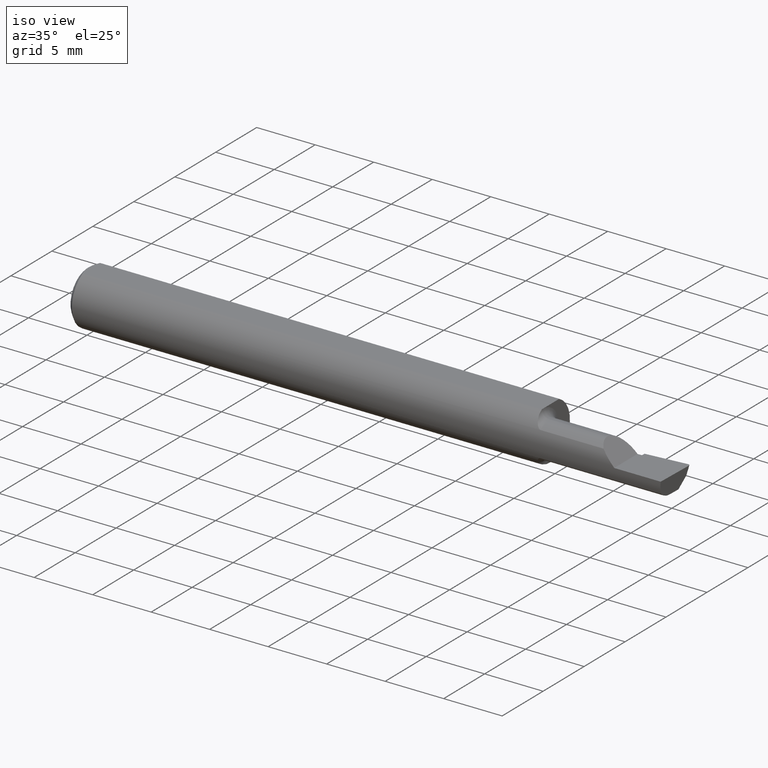
[diagram: clean part render]
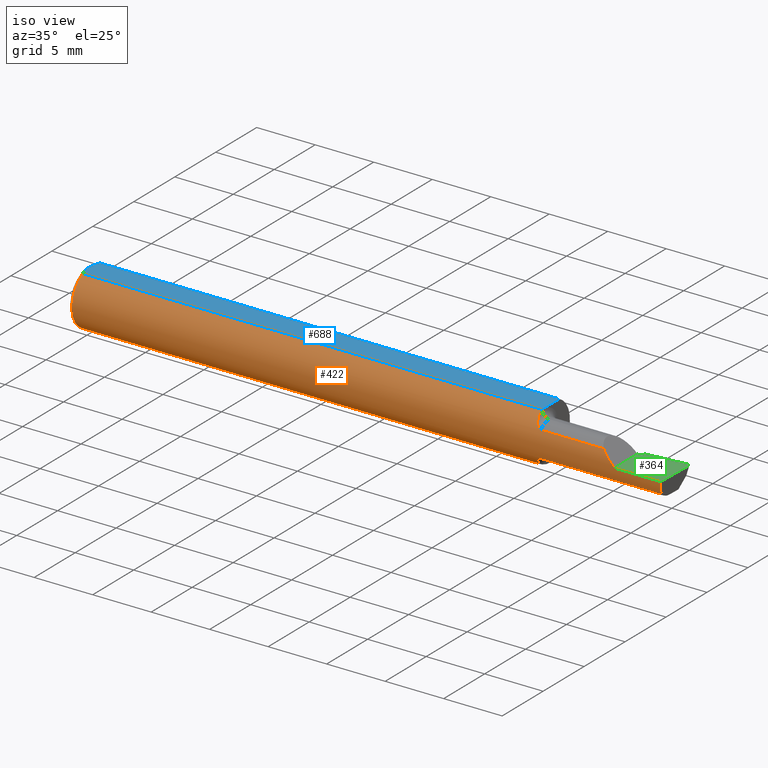
[diagram: same view with three faces highlighted in distinct colors, each labeled with its STEP entity id]
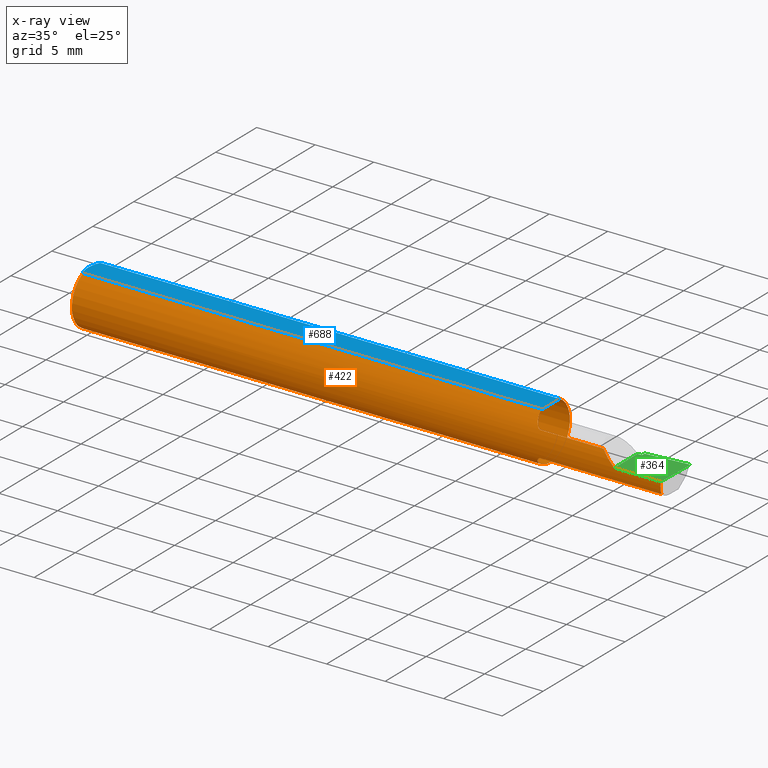
[diagram: x-ray of the same camera — body ghosted, the three highlighted faces saturated]
A machine part, iso view with three faces highlighted in distinct colors.
The next image is the same camera in x-ray (body ghosted, the three faces saturated) — at least one of them is partly hidden behind the body in this view.
Their STEP definitions:

[orange] entity #422 — the highlighted cylindrical surface (edge-blend (fillet) strip) has radius 2.3774 mm, axis along (-1, -0, -0).
#2 = VERTEX_POINT ( 'NONE', #658 ) ;
#3 = CARTESIAN_POINT ( 'NONE',  ( 0.01499999999999999598, 0.0000000000000000000, 0.0000000000000000000 ) ) ;
#5 = DIRECTION ( 'NONE',  ( 0.0000000000000000000, 0.0000000000000000000, 1.000000000000000000 ) ) ;
#15 = VERTEX_POINT ( 'NONE', #202 ) ;
#17 = AXIS2_PLACEMENT_3D ( 'NONE', #3, #293, #723 ) ;
#19 = B_SPLINE_CURVE_WITH_KNOTS ( 'NONE', 3,
 ( #73, #77, #51, #46, #40, #38, #36, #34, #28, #25, #22, #20 ),
 .UNSPECIFIED., .F., .F.,
 ( 4, 2, 2, 2, 2, 4 ),
 ( 4.385794166512837915E-07, 0.0004249653867803446445, 0.0008494921941440380627, 0.001274019001507731372, 0.001486282405189578298, 0.001698545808871425441 ),
 .UNSPECIFIED. ) ;
#20 = CARTESIAN_POINT ( 'NONE',  ( 1.584999999999999964, -0.08307469879518060429, 0.04312255117789304260 ) ) ;
#22 = CARTESIAN_POINT ( 'NONE',  ( 1.582123707331538176, -0.08307469879541819202, 0.04312255117743575561 ) ) ;
#25 = CARTESIAN_POINT ( 'NONE',  ( 1.579521451227007711, -0.08233651528522395457, 0.04455777109850305590 ) ) ;
#28 = CARTESIAN_POINT ( 'NONE',  ( 1.575413575230741436, -0.08042664989321213209, 0.04791921015141203249 ) ) ;
#34 = CARTESIAN_POINT ( 'NONE',  ( 1.573723886093656876, -0.07921817987507920322, 0.04991299092652130842 ) ) ;
#36 = CARTESIAN_POINT ( 'NONE',  ( 1.569277238843510558, -0.07518688180261749732, 0.05595855205958088358 ) ) ;
#38 = CARTESIAN_POINT ( 'NONE',  ( 1.567169981117899846, -0.07201923175886887352, 0.06001882546782344452 ) ) ;
#39 = CARTESIAN_POINT ( 'NONE',  ( 0.0000000000000000000, -0.04209513035969835587, 0.08360000000000000764 ) ) ;
#40 = CARTESIAN_POINT ( 'NONE',  ( 1.563721006865827379, -0.06478644025684783536, 0.06776242552123265539 ) ) ;
#41 = FACE_OUTER_BOUND ( 'NONE', #388, .T. ) ;
#42 = DIRECTION ( 'NONE',  ( -1.000000000000000000, -0.0000000000000000000, -0.0000000000000000000 ) ) ;
#46 = CARTESIAN_POINT ( 'NONE',  ( 1.562429122971264350, -0.06066239981255451552, 0.07149394324265900824 ) ) ;
#48 = CARTESIAN_POINT ( 'NONE',  ( 1.559999999999999831, -0.04014498638740777309, -0.08455714216888016166 ) ) ;
#49 = CARTESIAN_POINT ( 'NONE',  ( 0.01499999999999999598, 0.0000000000000000000, 0.0000000000000000000 ) ) ;
#51 = CARTESIAN_POINT ( 'NONE',  ( 1.560661035553191134, -0.05185656404701179806, 0.07811662714583196554 ) ) ;
#58 = LINE ( 'NONE', #592, #103 ) ;
#61 = DIRECTION ( 'NONE',  ( 1.000000000000000000, 0.0000000000000000000, 0.0000000000000000000 ) ) ;
#63 = CARTESIAN_POINT ( 'NONE',  ( 1.559999999999999831, 0.0000000000000000000, 0.0000000000000000000 ) ) ;
#65 = LINE ( 'NONE', #309, #630 ) ;
#73 = CARTESIAN_POINT ( 'NONE',  ( 1.560033712670300110, -0.04209513035969835587, 0.08360000000000000764 ) ) ;
#74 = CARTESIAN_POINT ( 'NONE',  ( 1.584999999999999964, -0.08307469879518090961, -0.04312255117789274422 ) ) ;
#77 = CARTESIAN_POINT ( 'NONE',  ( 1.560163936266268259, -0.04714148439307228045, 0.08105900800387488836 ) ) ;
#84 = DIRECTION ( 'NONE',  ( 1.000000000000000000, 0.0000000000000000000, 0.0000000000000000000 ) ) ;
#99 = DIRECTION ( 'NONE',  ( -1.000000000000000000, -0.0000000000000000000, -0.0000000000000000000 ) ) ;
#103 = VECTOR ( 'NONE', #84, 39.37007874015748143 ) ;
#106 = CARTESIAN_POINT ( 'NONE',  ( 1.560006719116742380, -0.04082489400077269487, -0.08423096411932438909 ) ) ;
#110 = CARTESIAN_POINT ( 'NONE',  ( 1.575354605856553514, -0.08039319987159068703, -0.04797642756495489741 ) ) ;
#112 = CARTESIAN_POINT ( 'NONE',  ( 1.996386342823452287, -0.09360000000000009979, -6.634435288474569554E-17 ) ) ;
#123 = ORIENTED_EDGE ( 'NONE', *, *, #549, .T. ) ;
#126 = CIRCLE ( 'NONE', #17, 0.09360000000000001652 ) ;
#128 = CARTESIAN_POINT ( 'NONE',  ( 1.991365359011874947, -0.08307469879518075695, -0.04312255117789293157 ) ) ;
#134 = CARTESIAN_POINT ( 'NONE',  ( 0.01499999999999999598, 0.04209513035969837669, 0.08360000000000000764 ) ) ;
#137 = CARTESIAN_POINT ( 'NONE',  ( 0.0000000000000000000, 0.0000000000000000000, 0.0000000000000000000 ) ) ;
#160 = CARTESIAN_POINT ( 'NONE',  ( 1.824917075065774830, -0.09360000000000001652, 0.01508292493422502302 ) ) ;
#162 = EDGE_CURVE ( 'NONE', #2, #594, #19, .T. ) ;
#164 = CARTESIAN_POINT ( 'NONE',  ( 1.996386342823452287, -0.09360000000000009979, -6.634435288474569554E-17 ) ) ;
#165 = CARTESIAN_POINT ( 'NONE',  ( 1.719999999999999973, -0.08307469879518075695, 0.04312255117789293157 ) ) ;
#167 = ORIENTED_EDGE ( 'NONE', *, *, #578, .F. ) ;
#170 = CARTESIAN_POINT ( 'NONE',  ( 1.569237437666585633, -0.07513599091569017618, -0.05602756047418831764 ) ) ;
#177 = DIRECTION ( 'NONE',  ( 0.0000000000000000000, 0.0000000000000000000, -1.000000000000000000 ) ) ;
#183 = CARTESIAN_POINT ( 'NONE',  ( 0.01499999999999999598, 0.0000000000000000000, -0.09360000000000001652 ) ) ;
#185 = VERTEX_POINT ( 'NONE', #134 ) ;
#188 = CARTESIAN_POINT ( 'NONE',  ( 1.840000000000000080, -0.09360000000000005815, 1.959434878635762025E-17 ) ) ;
#192 = CARTESIAN_POINT ( 'NONE',  ( 1.579498465877714031, -0.08233174416856396671, -0.04456779206614374517 ) ) ;
#202 = CARTESIAN_POINT ( 'NONE',  ( 1.559999999999999831, 0.04209513035969836975, 0.08360000000000000764 ) ) ;
#204 = CARTESIAN_POINT ( 'NONE',  ( 1.840000000000000080, -0.09360000000000005815, 1.959434878635762025E-17 ) ) ;
#205 = CARTESIAN_POINT ( 'NONE',  ( 1.560604804002112989, -0.05145819953596716956, -0.07838465384289880489 ) ) ;
#212 = CARTESIAN_POINT ( 'NONE',  ( 1.992827658777091893, -0.09002356847881787250, -0.02973569812382171815 ) ) ;
#216 = EDGE_CURVE ( 'NONE', #185, #15, #58, .T. ) ;
#217 = CARTESIAN_POINT ( 'NONE',  ( 0.01499999999999999944, -0.04209513035969835587, 0.08360000000000000764 ) ) ;
#219 = DIRECTION ( 'NONE',  ( -1.000000000000000000, -0.0000000000000000000, -0.0000000000000000000 ) ) ;
#221 = ORIENTED_EDGE ( 'NONE', *, *, #532, .F. ) ;
#229 =( BOUNDED_CURVE ( )  B_SPLINE_CURVE ( 3, ( #188, #160, #241, #244 ),
 .UNSPECIFIED., .F., .F. ) 
 B_SPLINE_CURVE_WITH_KNOTS ( ( 4, 4 ),
 ( 4.712388980384689674, 5.191185112936687496 ),
 .UNSPECIFIED. ) 
 CURVE ( )  GEOMETRIC_REPRESENTATION_ITEM ( )  RATIONAL_B_SPLINE_CURVE ( ( 1.000000000000000000, 0.9809872534005956712, 0.9809872534005956712, 1.000000000000000000 ) ) 
 REPRESENTATION_ITEM ( '' )  );
#238 = VECTOR ( 'NONE', #463, 39.37007874015748143 ) ;
#241 = CARTESIAN_POINT ( 'NONE',  ( 1.810264301876177928, -0.09002356847881788637, 0.02973569812382168345 ) ) ;
#242 = AXIS2_PLACEMENT_3D ( 'NONE', #49, #42, #5 ) ;
#243 = ORIENTED_EDGE ( 'NONE', *, *, #634, .T. ) ;
#244 = CARTESIAN_POINT ( 'NONE',  ( 1.796877448822106649, -0.08307469879518077083, 0.04312255117789291076 ) ) ;
#245 = VERTEX_POINT ( 'NONE', #112 ) ;
#257 = VERTEX_POINT ( 'NONE', #74 ) ;
#260 = VECTOR ( 'NONE', #276, 39.37007874015748143 ) ;
#262 = EDGE_CURVE ( 'NONE', #651, #448, #229, .T. ) ;
#272 =( BOUNDED_CURVE ( )  B_SPLINE_CURVE ( 3, ( #602, #212, #717, #164 ),
 .UNSPECIFIED., .F., .F. ) 
 B_SPLINE_CURVE_WITH_KNOTS ( ( 4, 4 ),
 ( 0.8819507499627812219, 1.360746882514778822 ),
 .UNSPECIFIED. ) 
 CURVE ( )  GEOMETRIC_REPRESENTATION_ITEM ( )  RATIONAL_B_SPLINE_CURVE ( ( 1.000000000000000000, 0.9809872534005956712, 0.9809872534005956712, 1.000000000000000000 ) ) 
 REPRESENTATION_ITEM ( '' )  );
#276 = DIRECTION ( 'NONE',  ( -1.000000000000000000, -0.0000000000000000000, -0.0000000000000000000 ) ) ;
#278 = ORIENTED_EDGE ( 'NONE', *, *, #439, .F. ) ;
#280 = CARTESIAN_POINT ( 'NONE',  ( 1.560020127471513085, -0.04150000000000000216, -0.08389702020930184245 ) ) ;
#283 = VERTEX_POINT ( 'NONE', #526 ) ;
#287 = EDGE_CURVE ( 'NONE', #594, #448, #683, .T. ) ;
#293 = DIRECTION ( 'NONE',  ( -1.000000000000000000, -0.0000000000000000000, -0.0000000000000000000 ) ) ;
#302 = AXIS2_PLACEMENT_3D ( 'NONE', #63, #61, #177 ) ;
#303 = EDGE_CURVE ( 'NONE', #401, #571, #403, .T. ) ;
#309 = CARTESIAN_POINT ( 'NONE',  ( 1.719999999999999973, -0.08307469879518075695, -0.04312255117789293157 ) ) ;
#313 = CARTESIAN_POINT ( 'NONE',  ( 1.563605992736884387, -0.06448586599545334808, -0.06805619079784636094 ) ) ;
#316 = CARTESIAN_POINT ( 'NONE',  ( 1.562355770679723976, -0.06040702343486042264, -0.07171535245186137775 ) ) ;
#320 = CARTESIAN_POINT ( 'NONE',  ( 1.560121283746727983, -0.04659318327468393167, -0.08137765652544184936 ) ) ;
#334 = CARTESIAN_POINT ( 'NONE',  ( 1.560020127471513085, -0.04150000000000000216, -0.08389702020930184245 ) ) ;
#342 = CARTESIAN_POINT ( 'NONE',  ( 5.659797890829555466E-31, -0.09359999999999998876, 1.030335658007946046E-15 ) ) ;
#344 = VECTOR ( 'NONE', #219, 39.37007874015748143 ) ;
#353 = B_SPLINE_CURVE_WITH_KNOTS ( 'NONE', 3,
 ( #280, #106, #48, #381 ),
 .UNSPECIFIED., .F., .F.,
 ( 4, 4 ),
 ( 0.001735506710063803703, 0.001793010945052108665 ),
 .UNSPECIFIED. ) ;
#371 = VERTEX_POINT ( 'NONE', #382 ) ;
#381 = CARTESIAN_POINT ( 'NONE',  ( 1.559999999999999831, -0.03946024096385548907, -0.08487549341873931730 ) ) ;
#382 = CARTESIAN_POINT ( 'NONE',  ( 1.559999999999999831, -0.03946024096385548907, -0.08487549341873931730 ) ) ;
#388 = EDGE_LOOP ( 'NONE', ( #278, #243, #580, #626, #681, #542, #123, #661, #572, #521, #167, #221, #420 ) ) ;
#393 = VERTEX_POINT ( 'NONE', #128 ) ;
#395 = LINE ( 'NONE', #39, #344 ) ;
#401 = VERTEX_POINT ( 'NONE', #183 ) ;
#403 = CIRCLE ( 'NONE', #242, 0.09360000000000001652 ) ;
#420 = ORIENTED_EDGE ( 'NONE', *, *, #440, .F. ) ;
#422 = ADVANCED_FACE ( 'NONE', ( #41 ), #511, .T. ) ;
#439 = EDGE_CURVE ( 'NONE', #393, #257, #65, .T. ) ;
#440 = EDGE_CURVE ( 'NONE', #257, #283, #640, .T. ) ;
#441 = CARTESIAN_POINT ( 'NONE',  ( 1.584999999999999964, -0.08307469879518090961, -0.04312255117789274422 ) ) ;
#448 = VERTEX_POINT ( 'NONE', #684 ) ;
#463 = DIRECTION ( 'NONE',  ( 1.000000000000000000, 0.0000000000000000000, 0.0000000000000000000 ) ) ;
#465 = EDGE_CURVE ( 'NONE', #185, #401, #126, .T. ) ;
#483 = AXIS2_PLACEMENT_3D ( 'NONE', #137, #709, #687 ) ;
#506 = CARTESIAN_POINT ( 'NONE',  ( 1.567076397983111269, -0.07187891021191494811, -0.06019546731975675136 ) ) ;
#511 = CYLINDRICAL_SURFACE ( 'NONE', #483, 0.09360000000000001652 ) ;
#521 = ORIENTED_EDGE ( 'NONE', *, *, #216, .T. ) ;
#526 = CARTESIAN_POINT ( 'NONE',  ( 1.560020127471513085, -0.04150000000000000216, -0.08389702020930184245 ) ) ;
#532 = EDGE_CURVE ( 'NONE', #283, #371, #353, .T. ) ;
#542 = ORIENTED_EDGE ( 'NONE', *, *, #162, .F. ) ;
#549 = EDGE_CURVE ( 'NONE', #2, #571, #395, .T. ) ;
#555 = LINE ( 'NONE', #342, #260 ) ;
#571 = VERTEX_POINT ( 'NONE', #217 ) ;
#572 = ORIENTED_EDGE ( 'NONE', *, *, #465, .F. ) ;
#578 = EDGE_CURVE ( 'NONE', #371, #15, #707, .T. ) ;
#580 = ORIENTED_EDGE ( 'NONE', *, *, #676, .T. ) ;
#592 = CARTESIAN_POINT ( 'NONE',  ( 0.0000000000000000000, 0.04209513035969837669, 0.08360000000000000764 ) ) ;
#594 = VERTEX_POINT ( 'NONE', #671 ) ;
#602 = CARTESIAN_POINT ( 'NONE',  ( 1.991365359011874947, -0.08307469879518075695, -0.04312255117789293157 ) ) ;
#622 = CARTESIAN_POINT ( 'NONE',  ( 1.582100790213034180, -0.08307469879518085409, -0.04312255117789271647 ) ) ;
#626 = ORIENTED_EDGE ( 'NONE', *, *, #262, .T. ) ;
#630 = VECTOR ( 'NONE', #99, 39.37007874015748143 ) ;
#634 = EDGE_CURVE ( 'NONE', #393, #245, #272, .T. ) ;
#640 = B_SPLINE_CURVE_WITH_KNOTS ( 'NONE', 3,
 ( #441, #622, #192, #110, #672, #170, #506, #313, #316, #205, #320, #334 ),
 .UNSPECIFIED., .F., .F.,
 ( 4, 2, 2, 2, 2, 4 ),
 ( 1.963546462202250193E-07, 0.0002171101490734184992, 0.0004340239435006167340, 0.0008678515323550124987, 0.001301679121209408209, 0.001735506710063803703 ),
 .UNSPECIFIED. ) ;
#651 = VERTEX_POINT ( 'NONE', #204 ) ;
#658 = CARTESIAN_POINT ( 'NONE',  ( 1.560033712670300110, -0.04209513035969835587, 0.08360000000000000764 ) ) ;
#661 = ORIENTED_EDGE ( 'NONE', *, *, #303, .F. ) ;
#671 = CARTESIAN_POINT ( 'NONE',  ( 1.584999999999999964, -0.08307469879518060429, 0.04312255117789304260 ) ) ;
#672 = CARTESIAN_POINT ( 'NONE',  ( 1.573672693420809177, -0.07917899622880056332, -0.04997532113045944496 ) ) ;
#676 = EDGE_CURVE ( 'NONE', #245, #651, #555, .T. ) ;
#681 = ORIENTED_EDGE ( 'NONE', *, *, #287, .F. ) ;
#683 = LINE ( 'NONE', #165, #238 ) ;
#684 = CARTESIAN_POINT ( 'NONE',  ( 1.796877448822106649, -0.08307469879518077083, 0.04312255117789291076 ) ) ;
#687 = DIRECTION ( 'NONE',  ( 0.0000000000000000000, 0.0000000000000000000, 1.000000000000000000 ) ) ;
#707 = CIRCLE ( 'NONE', #302, 0.09360000000000001652 ) ;
#709 = DIRECTION ( 'NONE',  ( -1.000000000000000000, -0.0000000000000000000, -0.0000000000000000000 ) ) ;
#717 = CARTESIAN_POINT ( 'NONE',  ( 1.994533757673610186, -0.09360000000000003040, -0.01508292493422506118 ) ) ;
#723 = DIRECTION ( 'NONE',  ( 0.0000000000000000000, 0.0000000000000000000, 1.000000000000000000 ) ) ;

[blue] entity #688 — the highlighted planar face has unit normal (0, -0, -1).
#2 = VERTEX_POINT ( 'NONE', #658 ) ;
#15 = VERTEX_POINT ( 'NONE', #202 ) ;
#18 = EDGE_LOOP ( 'NONE', ( #347, #182, #396, #721, #601, #507, #485 ) ) ;
#39 = CARTESIAN_POINT ( 'NONE',  ( 0.0000000000000000000, -0.04209513035969835587, 0.08360000000000000764 ) ) ;
#54 = CARTESIAN_POINT ( 'NONE',  ( 0.005000000000000236026, 1.025183009042025117E-17, 0.08360000000000000764 ) ) ;
#58 = LINE ( 'NONE', #592, #103 ) ;
#67 = CARTESIAN_POINT ( 'NONE',  ( 0.01206089165507025739, -0.03555991978469312531, 0.08360000000000000764 ) ) ;
#80 = EDGE_CURVE ( 'NONE', #560, #185, #291, .T. ) ;
#84 = DIRECTION ( 'NONE',  ( 1.000000000000000000, 0.0000000000000000000, 0.0000000000000000000 ) ) ;
#86 = EDGE_CURVE ( 'NONE', #433, #98, #587, .T. ) ;
#95 = CARTESIAN_POINT ( 'NONE',  ( 1.560033822879743681, -0.04150000000000000216, 0.08360000000000000764 ) ) ;
#98 = VERTEX_POINT ( 'NONE', #304 ) ;
#103 = VECTOR ( 'NONE', #84, 39.37007874015748143 ) ;
#114 = CARTESIAN_POINT ( 'NONE',  ( 0.005975039161239525769, -0.01453776427033148279, 0.08359999999999997988 ) ) ;
#122 = CARTESIAN_POINT ( 'NONE',  ( 0.005000000000000228220, -0.007328888879231052964, 0.08360000000000000764 ) ) ;
#134 = CARTESIAN_POINT ( 'NONE',  ( 0.01499999999999999598, 0.04209513035969837669, 0.08360000000000000764 ) ) ;
#182 = ORIENTED_EDGE ( 'NONE', *, *, #534, .F. ) ;
#184 = VECTOR ( 'NONE', #270, 39.37007874015748143 ) ;
#185 = VERTEX_POINT ( 'NONE', #134 ) ;
#202 = CARTESIAN_POINT ( 'NONE',  ( 1.559999999999999831, 0.04209513035969836975, 0.08360000000000000764 ) ) ;
#216 = EDGE_CURVE ( 'NONE', #185, #15, #58, .T. ) ;
#217 = CARTESIAN_POINT ( 'NONE',  ( 0.01499999999999999944, -0.04209513035969835587, 0.08360000000000000764 ) ) ;
#219 = DIRECTION ( 'NONE',  ( -1.000000000000000000, -0.0000000000000000000, -0.0000000000000000000 ) ) ;
#256 = CARTESIAN_POINT ( 'NONE',  ( 1.559999999999999831, 0.1436000000000000332, 0.08359999999999999376 ) ) ;
#270 = DIRECTION ( 'NONE',  ( 0.0000000000000000000, -1.000000000000000000, 1.189000693621284344E-16 ) ) ;
#274 = CARTESIAN_POINT ( 'NONE',  ( 0.005000000000000236026, 1.025183009042025117E-17, 0.08360000000000000764 ) ) ;
#279 = CARTESIAN_POINT ( 'NONE',  ( 2.000000000000000000, 0.1436000000000000332, 0.08359999999999999376 ) ) ;
#289 = B_SPLINE_CURVE_WITH_KNOTS ( 'NONE', 3,
 ( #725, #67, #443, #114, #122, #54 ),
 .UNSPECIFIED., .F., .F.,
 ( 4, 2, 4 ),
 ( 0.005785415439423114564, 0.006333348270144337384, 0.006881281100865560205 ),
 .UNSPECIFIED. ) ;
#291 = B_SPLINE_CURVE_WITH_KNOTS ( 'NONE', 3,
 ( #538, #554, #588, #522, #536, #531 ),
 .UNSPECIFIED., .F., .F.,
 ( 4, 2, 4 ),
 ( 0.006881281100865560205, 0.007427683811376459971, 0.007974086521887359738 ),
 .UNSPECIFIED. ) ;
#304 = CARTESIAN_POINT ( 'NONE',  ( 1.560033822879743681, -0.04150000000000000216, 0.08360000000000000764 ) ) ;
#328 = FACE_OUTER_BOUND ( 'NONE', #18, .T. ) ;
#344 = VECTOR ( 'NONE', #219, 39.37007874015748143 ) ;
#347 = ORIENTED_EDGE ( 'NONE', *, *, #86, .F. ) ;
#384 = DIRECTION ( 'NONE',  ( 0.0000000000000000000, -1.189000693621284344E-16, -1.000000000000000000 ) ) ;
#395 = LINE ( 'NONE', #39, #344 ) ;
#396 = ORIENTED_EDGE ( 'NONE', *, *, #216, .F. ) ;
#414 = B_SPLINE_CURVE_WITH_KNOTS ( 'NONE', 3,
 ( #95, #516, #445, #564, #424 ),
 .UNSPECIFIED., .F., .F.,
 ( 4, 1, 4 ),
 ( 0.001137327269498854699, 0.001144877036798491862, 0.001152426804098129025 ),
 .UNSPECIFIED. ) ;
#424 = CARTESIAN_POINT ( 'NONE',  ( 1.560033712670300110, -0.04209513035969835587, 0.08360000000000000764 ) ) ;
#433 = VERTEX_POINT ( 'NONE', #603 ) ;
#443 = CARTESIAN_POINT ( 'NONE',  ( 0.009539353699420832430, -0.02875682547511371895, 0.08360000000000000764 ) ) ;
#445 = CARTESIAN_POINT ( 'NONE',  ( 1.560033804492674259, -0.04179756391332128951, 0.08360000000000000764 ) ) ;
#467 = CARTESIAN_POINT ( 'NONE',  ( 1.560033822879743681, -0.04150000000000000216, 0.08360000000000000764 ) ) ;
#468 = LINE ( 'NONE', #256, #184 ) ;
#471 = CARTESIAN_POINT ( 'NONE',  ( 1.560033822879743681, -0.03903342675892661207, 0.08360000000000000764 ) ) ;
#473 = CARTESIAN_POINT ( 'NONE',  ( 1.560027419345087152, -0.03656676420729532834, 0.08359999999999997988 ) ) ;
#476 = CARTESIAN_POINT ( 'NONE',  ( 1.559999999999999831, -0.02669966216601818085, 0.08360000000000000764 ) ) ;
#479 = CARTESIAN_POINT ( 'NONE',  ( 1.560010473476444393, -0.03163306423249828692, 0.08360000000000000764 ) ) ;
#485 = ORIENTED_EDGE ( 'NONE', *, *, #656, .F. ) ;
#486 = CARTESIAN_POINT ( 'NONE',  ( 1.559999999999999831, -0.02916612216505911487, 0.08360000000000000764 ) ) ;
#490 = PLANE ( 'NONE',  #711 ) ;
#499 = DIRECTION ( 'NONE',  ( 0.0000000000000000000, 1.000000000000000000, -1.189000693621284344E-16 ) ) ;
#507 = ORIENTED_EDGE ( 'NONE', *, *, #549, .F. ) ;
#516 = CARTESIAN_POINT ( 'NONE',  ( 1.560033822879743015, -0.04159918775969437960, 0.08360000000000000764 ) ) ;
#522 = CARTESIAN_POINT ( 'NONE',  ( 0.009492654797564337166, 0.02859466010166625619, 0.08359999999999997988 ) ) ;
#531 = CARTESIAN_POINT ( 'NONE',  ( 0.01499999999999999598, 0.04209513035969837669, 0.08360000000000000764 ) ) ;
#534 = EDGE_CURVE ( 'NONE', #15, #433, #468, .T. ) ;
#536 = CARTESIAN_POINT ( 'NONE',  ( 0.01203648650249650523, 0.03550565407121123590, 0.08360000000000000764 ) ) ;
#538 = CARTESIAN_POINT ( 'NONE',  ( 0.005000000000000236026, 1.025183009042025117E-17, 0.08360000000000000764 ) ) ;
#549 = EDGE_CURVE ( 'NONE', #2, #571, #395, .T. ) ;
#554 = CARTESIAN_POINT ( 'NONE',  ( 0.005000000000000223883, 0.007308422719211823959, 0.08360000000000000764 ) ) ;
#560 = VERTEX_POINT ( 'NONE', #274 ) ;
#564 = CARTESIAN_POINT ( 'NONE',  ( 1.560033749376515289, -0.04199594133387062750, 0.08360000000000003539 ) ) ;
#571 = VERTEX_POINT ( 'NONE', #217 ) ;
#587 = B_SPLINE_CURVE_WITH_KNOTS ( 'NONE', 3,
 ( #476, #486, #479, #473, #471, #467 ),
 .UNSPECIFIED., .F., .F.,
 ( 4, 2, 4 ),
 ( 0.0007618363005527809071, 0.0009495817850258178030, 0.001137327269498854699 ),
 .UNSPECIFIED. ) ;
#588 = CARTESIAN_POINT ( 'NONE',  ( 0.005981829149300850468, 0.01454044632356567279, 0.08360000000000000764 ) ) ;
#592 = CARTESIAN_POINT ( 'NONE',  ( 0.0000000000000000000, 0.04209513035969837669, 0.08360000000000000764 ) ) ;
#601 = ORIENTED_EDGE ( 'NONE', *, *, #668, .F. ) ;
#603 = CARTESIAN_POINT ( 'NONE',  ( 1.559999999999999831, -0.02669966216601818085, 0.08360000000000000764 ) ) ;
#656 = EDGE_CURVE ( 'NONE', #98, #2, #414, .T. ) ;
#658 = CARTESIAN_POINT ( 'NONE',  ( 1.560033712670300110, -0.04209513035969835587, 0.08360000000000000764 ) ) ;
#668 = EDGE_CURVE ( 'NONE', #571, #560, #289, .T. ) ;
#688 = ADVANCED_FACE ( 'NONE', ( #328 ), #490, .F. ) ;
#711 = AXIS2_PLACEMENT_3D ( 'NONE', #279, #384, #499 ) ;
#721 = ORIENTED_EDGE ( 'NONE', *, *, #80, .F. ) ;
#725 = CARTESIAN_POINT ( 'NONE',  ( 0.01499999999999999944, -0.04209513035969835587, 0.08360000000000000764 ) ) ;

[green] entity #364 — the highlighted planar face has unit normal (-0, 0, -1).
#29 = EDGE_CURVE ( 'NONE', #418, #394, #570, .T. ) ;
#50 = VERTEX_POINT ( 'NONE', #705 ) ;
#59 = CARTESIAN_POINT ( 'NONE',  ( 1.993512870449314134, 0.04374616680637218036, -7.256471233170699482E-17 ) ) ;
#79 = CARTESIAN_POINT ( 'NONE',  ( 1.107894390816139163, -0.04150000000000000216, 4.217516215662293437E-16 ) ) ;
#82 = EDGE_LOOP ( 'NONE', ( #181, #197, #346, #258, #231, #391, #367, #405 ) ) ;
#112 = CARTESIAN_POINT ( 'NONE',  ( 1.996386342823452287, -0.09360000000000009979, -6.634435288474569554E-17 ) ) ;
#118 = LINE ( 'NONE', #625, #247 ) ;
#130 = DIRECTION ( 'NONE',  ( 0.9953961983671787417, 0.09584575252022466130, -5.467869873542577569E-16 ) ) ;
#132 = VERTEX_POINT ( 'NONE', #200 ) ;
#136 = VECTOR ( 'NONE', #130, 39.37007874015748143 ) ;
#138 = EDGE_CURVE ( 'NONE', #651, #140, #451, .T. ) ;
#140 = VERTEX_POINT ( 'NONE', #189 ) ;
#175 = LINE ( 'NONE', #455, #596 ) ;
#181 = ORIENTED_EDGE ( 'NONE', *, *, #624, .T. ) ;
#189 = CARTESIAN_POINT ( 'NONE',  ( 1.840000000000000080, 0.01839999999999989908, 1.959434878635762025E-17 ) ) ;
#196 = DIRECTION ( 'NONE',  ( -0.0000000000000000000, 1.000000000000000000, -0.0000000000000000000 ) ) ;
#197 = ORIENTED_EDGE ( 'NONE', *, *, #29, .T. ) ;
#200 = CARTESIAN_POINT ( 'NONE',  ( 1.854999999999999982, 0.03043808801135922115, 1.030335937757294514E-15 ) ) ;
#204 = CARTESIAN_POINT ( 'NONE',  ( 1.840000000000000080, -0.09360000000000005815, 1.959434878635762025E-17 ) ) ;
#208 = CARTESIAN_POINT ( 'NONE',  ( 1.840000000000000080, -0.2500000000000000555, 1.959434878635762025E-17 ) ) ;
#218 = CARTESIAN_POINT ( 'NONE',  ( 1.993512870449314134, 0.04374616680637218036, -7.256471233170699482E-17 ) ) ;
#220 = CARTESIAN_POINT ( 'NONE',  ( 1.992906680581893131, 0.04371699102466929804, -6.439972649628915015E-17 ) ) ;
#231 = ORIENTED_EDGE ( 'NONE', *, *, #597, .F. ) ;
#245 = VERTEX_POINT ( 'NONE', #112 ) ;
#247 = VECTOR ( 'NONE', #726, 39.37007874015748143 ) ;
#251 = EDGE_CURVE ( 'NONE', #132, #50, #472, .T. ) ;
#258 = ORIENTED_EDGE ( 'NONE', *, *, #251, .F. ) ;
#260 = VECTOR ( 'NONE', #276, 39.37007874015748143 ) ;
#271 = FACE_OUTER_BOUND ( 'NONE', #82, .T. ) ;
#276 = DIRECTION ( 'NONE',  ( -1.000000000000000000, -0.0000000000000000000, -0.0000000000000000000 ) ) ;
#297 = CARTESIAN_POINT ( 'NONE',  ( 1.993108609909223228, 0.04373643460740121724, -6.821681774272533497E-17 ) ) ;
#317 = CARTESIAN_POINT ( 'NONE',  ( 1.999910038027503445, 0.04096449087509779208, -7.195295054753370076E-17 ) ) ;
#318 = LINE ( 'NONE', #497, #637 ) ;
#342 = CARTESIAN_POINT ( 'NONE',  ( 5.659797890829555466E-31, -0.09359999999999998876, 1.030335658007946046E-15 ) ) ;
#346 = ORIENTED_EDGE ( 'NONE', *, *, #400, .T. ) ;
#350 = CARTESIAN_POINT ( 'NONE',  ( 1.993310817358676879, 0.04374616680637218036, -6.832789351565739517E-17 ) ) ;
#364 = ADVANCED_FACE ( 'NONE', ( #271 ), #375, .F. ) ;
#367 = ORIENTED_EDGE ( 'NONE', *, *, #138, .F. ) ;
#375 = PLANE ( 'NONE',  #633 ) ;
#391 = ORIENTED_EDGE ( 'NONE', *, *, #639, .F. ) ;
#392 = DIRECTION ( 'NONE',  ( 0.0000000000000000000, 1.000000000000000000, 0.0000000000000000000 ) ) ;
#394 = VERTEX_POINT ( 'NONE', #218 ) ;
#400 = EDGE_CURVE ( 'NONE', #394, #50, #627, .T. ) ;
#402 = CARTESIAN_POINT ( 'NONE',  ( 1.999806390372779408, 0.03700634663142097353, -6.825079363098314243E-17 ) ) ;
#405 = ORIENTED_EDGE ( 'NONE', *, *, #676, .F. ) ;
#418 = VERTEX_POINT ( 'NONE', #703 ) ;
#437 = DIRECTION ( 'NONE',  ( 0.02617694830786435750, 0.9996573249755573709, -1.459184416195624665E-17 ) ) ;
#451 = LINE ( 'NONE', #208, #653 ) ;
#455 = CARTESIAN_POINT ( 'NONE',  ( 1.992296147241039872, -0.2497982675158734178, -6.406435080701879992E-17 ) ) ;
#472 = LINE ( 'NONE', #79, #136 ) ;
#491 = DIRECTION ( 'NONE',  ( -5.493159289247764363E-16, 0.0000000000000000000, -1.000000000000000000 ) ) ;
#497 = CARTESIAN_POINT ( 'NONE',  ( 1.854999999999999982, -0.2500000000000000555, 1.135460985248596835E-17 ) ) ;
#504 = DIRECTION ( 'NONE',  ( -1.000000000000000000, 0.0000000000000000000, 5.493159289247764363E-16 ) ) ;
#552 = CARTESIAN_POINT ( 'NONE',  ( 1.854999999999999982, 0.01839999999999999969, 1.030335658007946440E-15 ) ) ;
#555 = LINE ( 'NONE', #342, #260 ) ;
#557 = CARTESIAN_POINT ( 'NONE',  ( 2.000000000000000000, -0.2500000000000000555, -6.829619984160658046E-17 ) ) ;
#570 =( BOUNDED_CURVE ( )  B_SPLINE_CURVE ( 3, ( #402, #317, #650, #607 ),
 .UNSPECIFIED., .F., .F. ) 
 B_SPLINE_CURVE_WITH_KNOTS ( ( 4, 4 ),
 ( 1.953092279228445527, 3.511516179717669051 ),
 .UNSPECIFIED. ) 
 CURVE ( )  GEOMETRIC_REPRESENTATION_ITEM ( )  RATIONAL_B_SPLINE_CURVE ( ( 1.000000000000000000, 0.8076450242550491376, 0.8076450242550491376, 1.000000000000000000 ) ) 
 REPRESENTATION_ITEM ( '' )  );
#586 = VERTEX_POINT ( 'NONE', #552 ) ;
#596 = VECTOR ( 'NONE', #437, 39.37007874015749564 ) ;
#597 = EDGE_CURVE ( 'NONE', #586, #132, #318, .T. ) ;
#607 = CARTESIAN_POINT ( 'NONE',  ( 1.993512870449314134, 0.04374616680637218036, -7.256471233170699482E-17 ) ) ;
#624 = EDGE_CURVE ( 'NONE', #245, #418, #175, .T. ) ;
#625 = CARTESIAN_POINT ( 'NONE',  ( 5.659797890829555466E-31, 0.01839999999999997540, 1.030335658007946046E-15 ) ) ;
#627 =( BOUNDED_CURVE ( )  B_SPLINE_CURVE ( 3, ( #59, #350, #297, #220 ),
 .UNSPECIFIED., .F., .T. ) 
 B_SPLINE_CURVE_WITH_KNOTS ( ( 4, 4 ),
 ( 3.511516179717669051, 3.604018710826185412 ),
 .UNSPECIFIED. ) 
 CURVE ( )  GEOMETRIC_REPRESENTATION_ITEM ( )  RATIONAL_B_SPLINE_CURVE ( ( 1.000000000000000000, 0.9992870672494020834, 0.9992870672494020834, 1.000000000000000000 ) ) 
 REPRESENTATION_ITEM ( '' )  );
#633 = AXIS2_PLACEMENT_3D ( 'NONE', #557, #491, #504 ) ;
#637 = VECTOR ( 'NONE', #392, 39.37007874015748143 ) ;
#639 = EDGE_CURVE ( 'NONE', #140, #586, #118, .T. ) ;
#650 = CARTESIAN_POINT ( 'NONE',  ( 1.997312560284824290, 0.04374616680637211097, -7.052611464845224174E-17 ) ) ;
#651 = VERTEX_POINT ( 'NONE', #204 ) ;
#653 = VECTOR ( 'NONE', #196, 39.37007874015748143 ) ;
#676 = EDGE_CURVE ( 'NONE', #245, #651, #555, .T. ) ;
#703 = CARTESIAN_POINT ( 'NONE',  ( 1.999806390372779408, 0.03700634663142097353, -6.825079363098314243E-17 ) ) ;
#705 = CARTESIAN_POINT ( 'NONE',  ( 1.992906680581893131, 0.04371699102466929804, -6.439972649628915015E-17 ) ) ;
#726 = DIRECTION ( 'NONE',  ( 1.000000000000000000, 0.0000000000000000000, 0.0000000000000000000 ) ) ;